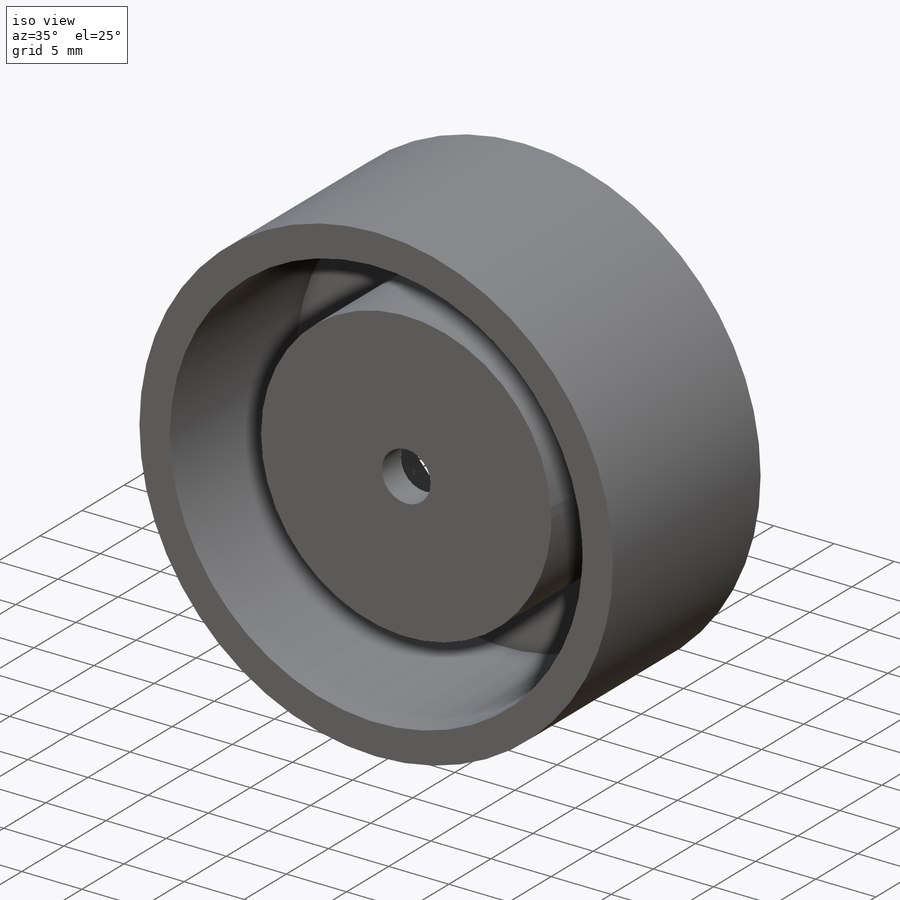
[diagram: iso view]
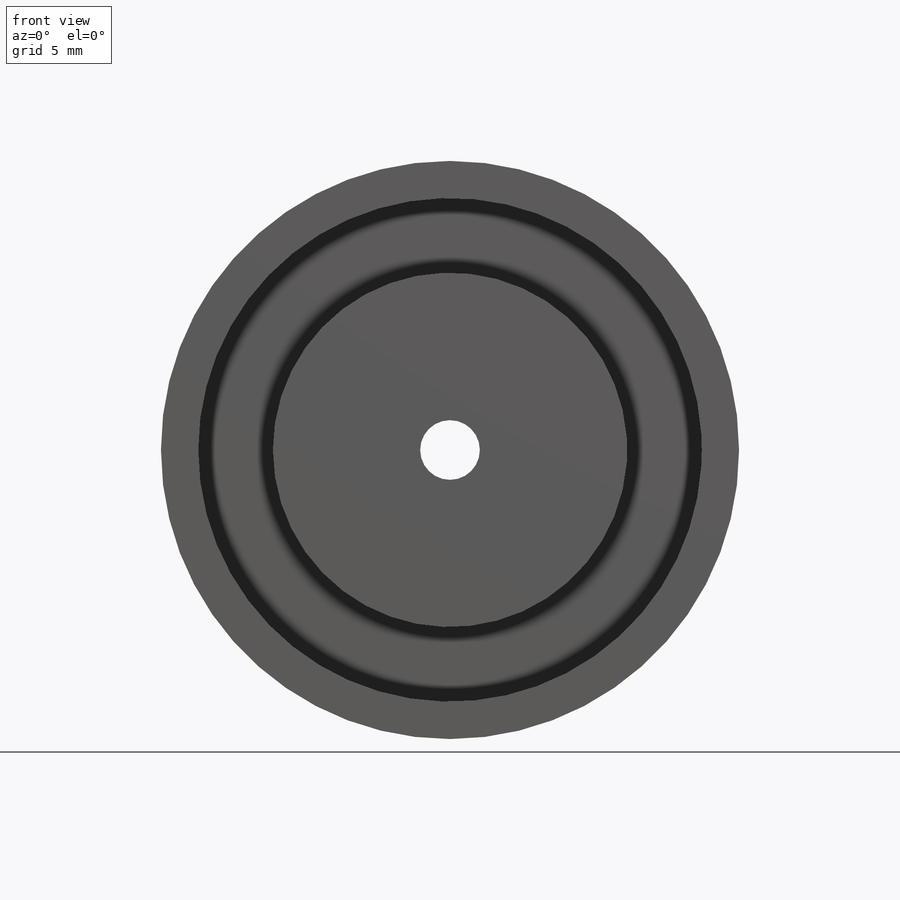
[diagram: front view]
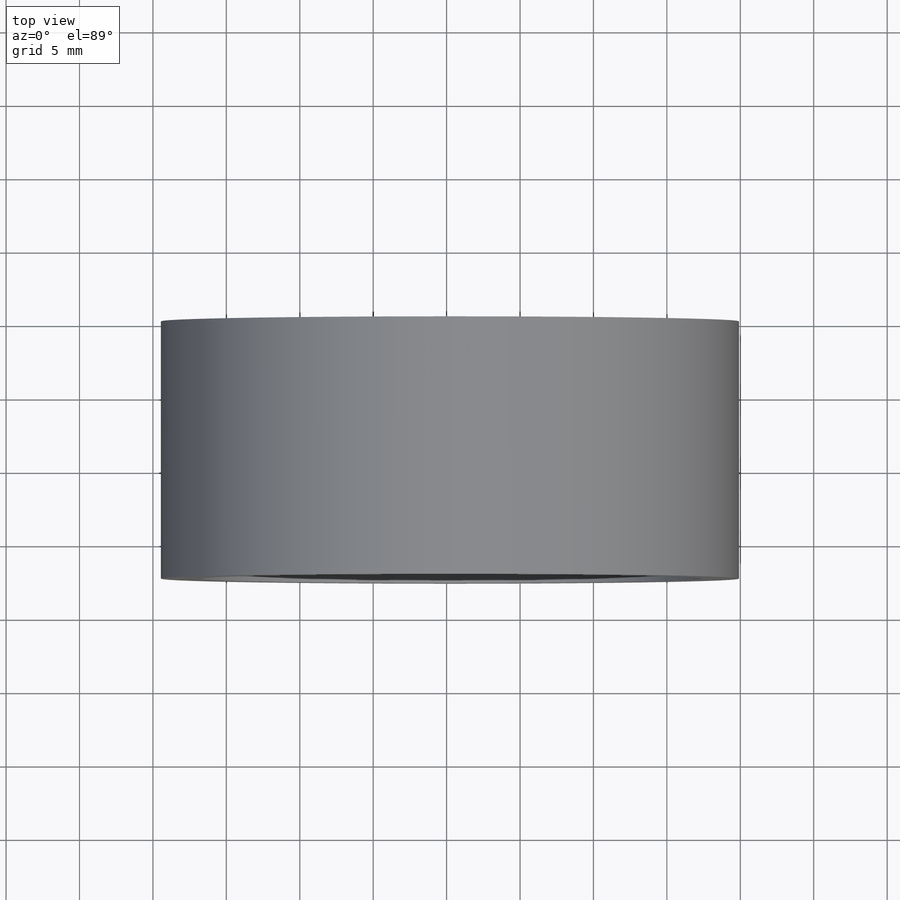
[diagram: top view]
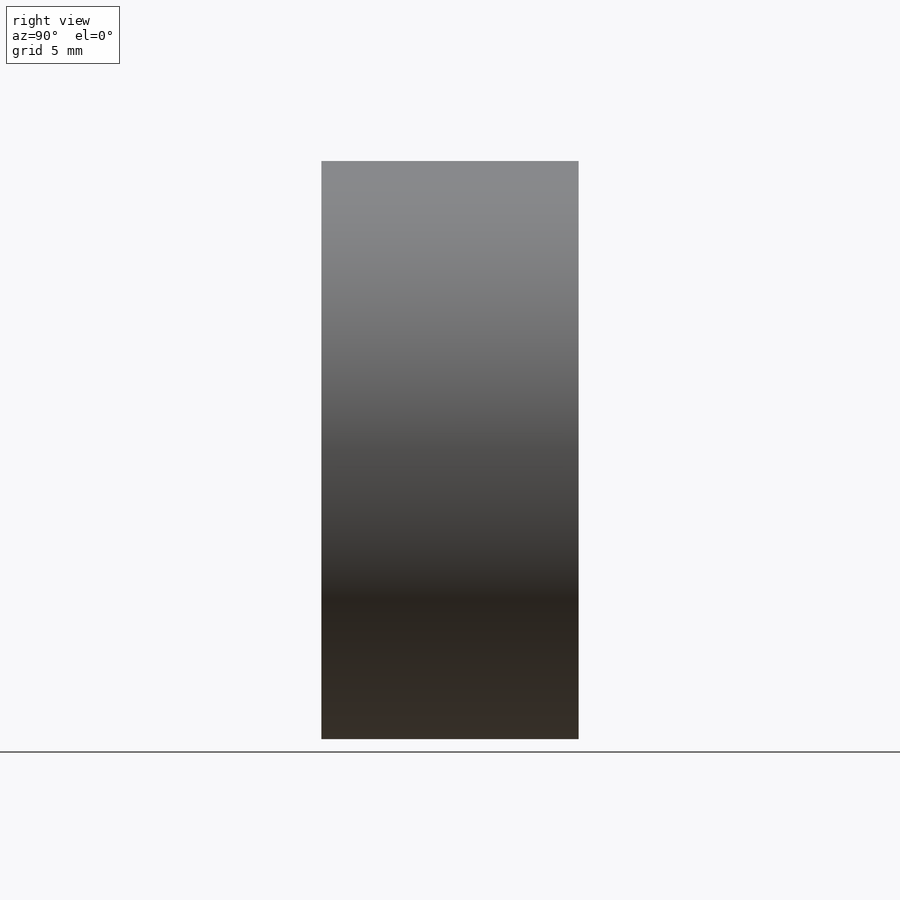
[diagram: right view]
SOLIDWORKS PART (.sldprt)
format: sldprt  version: not decoded by parser v0  size: 183,296 bytes
history: native  units: mm
features: sketch x4, extrude x2, cut_extrude x2, material x1, shell x1 (+11 scaffold rows collapsed)
feature tree (21):
  scaffold x11  (default folders/planes/origin — collapsed)
  material  "Material <not specified>"
  sketch  "Sketch1"  dims[D1=39.37mm D2=24.13mm D3=5207.0mm]
  extrude  "Boss-Extrude4"  Depth=17.526mm
  shell  "Shell1"  Thickness=2.54mm
  sketch  "Sketch2"  dims[D1=~13.454476mm]
  extrude  "Boss-Extrude5"  Depth=11.43mm
  sketch  "Sketch3"  dims[D1=21.59mm]
  cut_extrude  "Cut-Extrude1"  Depth=11.684mm
  sketch  "Sketch4"  dims[c1.D1=~21.508247mm c2.D1=60.0deg c2.D2=~21.508247mm c3.D2=60.0deg c3.D3=~21.508247mm c4.D3=60.0deg c5.D3=~21.508247mm c6.D3=60.0deg c7.D3=~21.508247mm]
  cut_extrude  "Cut-Extrude2"  Depth=2.54mm
decode coverage: 9 of 9 modeling features carry decoded parameters
note: ~ marks probable driven/reference dimensions
note: suppression state not decoded; provenance and decode notes live in map.json
